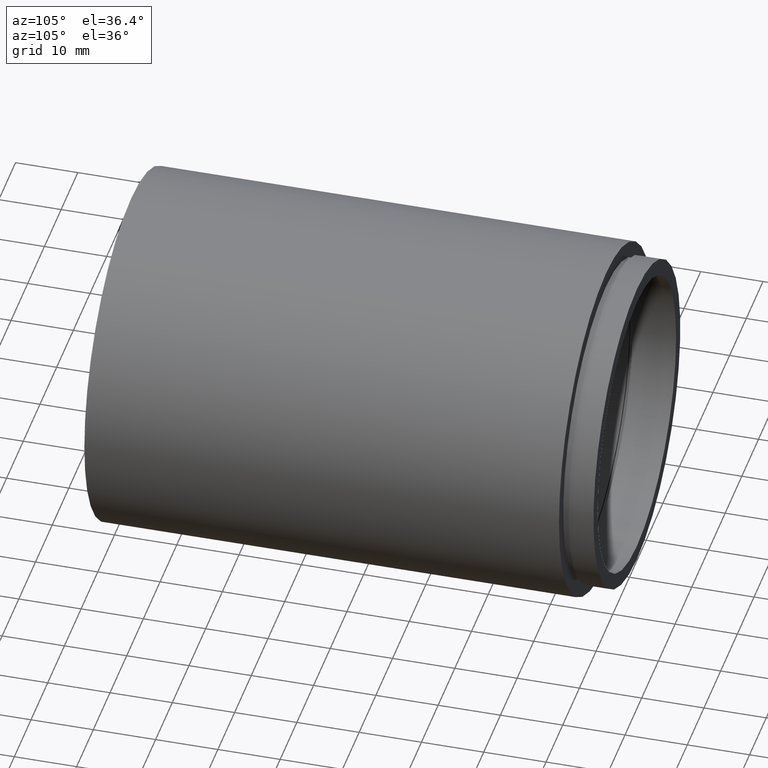
[diagram: clean part render]
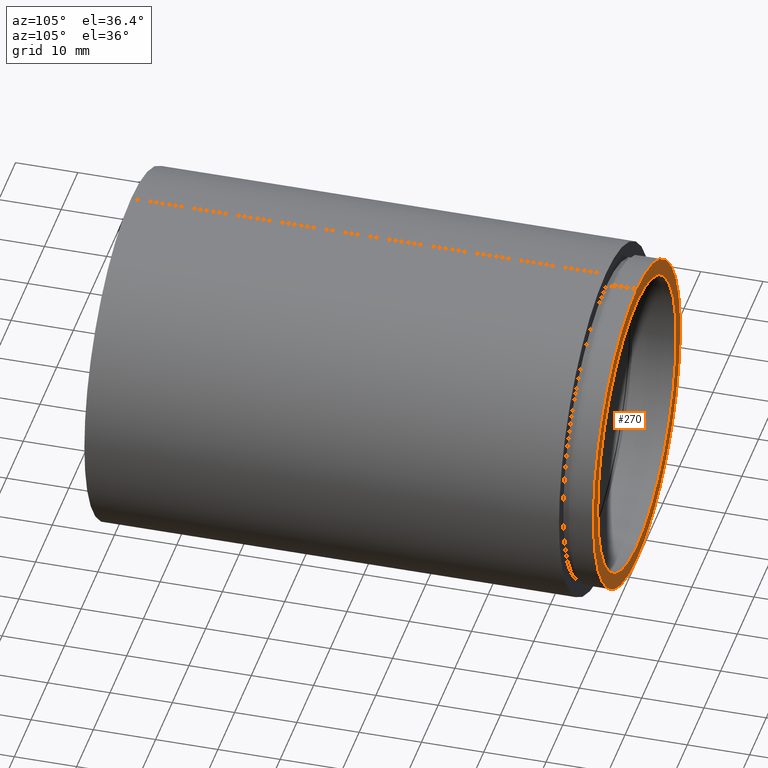
[diagram: same view with one face highlighted and labeled with its STEP entity id]
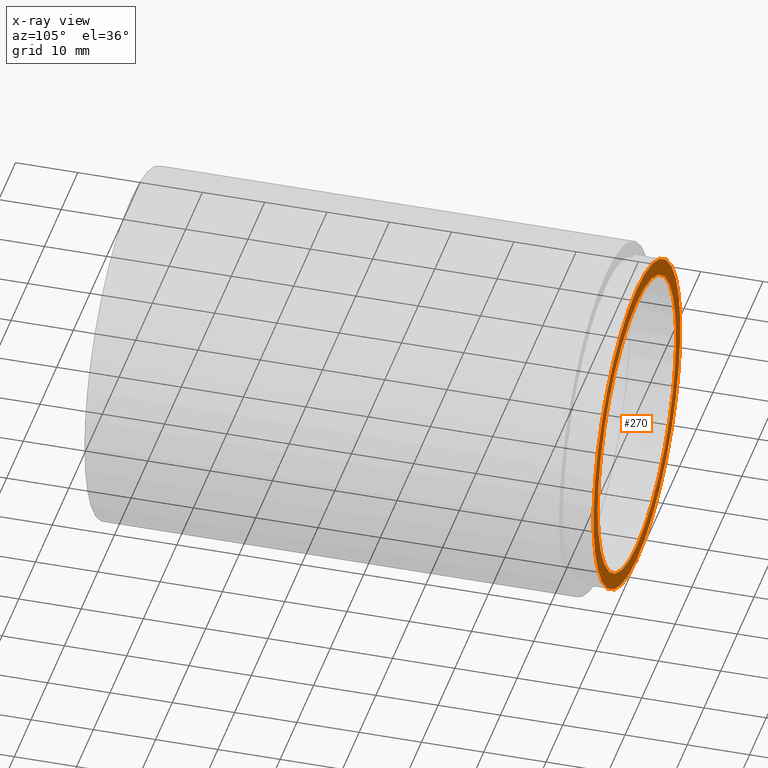
[diagram: x-ray of the same camera — body ghosted, the highlighted face saturated]
A machine part, auxiliary view. The second image highlights one B-rep face of the part: STEP entity #270.
The next image is the same camera in x-ray: the body ghosted, the highlighted face saturated — about 0% of this face is hidden behind the body in this view.
In plain terms, the highlighted planar face has unit normal (0, -1, 0).
Its self-contained STEP definition (entity closure, byte-faithful):
#3 = CIRCLE ( 'NONE', #330, 26.00000000000001100 ) ;
#19 = CIRCLE ( 'NONE', #570, 23.50000000000001400 ) ;
#36 = EDGE_LOOP ( 'NONE', ( #61, #431 ) ) ;
#51 = DIRECTION ( 'NONE',  ( 0.0000000000000000000, 0.0000000000000000000, 1.000000000000000000 ) ) ;
#61 = ORIENTED_EDGE ( 'NONE', *, *, #477, .T. ) ;
#70 = AXIS2_PLACEMENT_3D ( 'NONE', #495, #206, #585 ) ;
#97 = CARTESIAN_POINT ( 'NONE',  ( 3.184081677783119400E-015, 81.19999999999998900, -26.00000000000001100 ) ) ;
#104 = FACE_BOUND ( 'NONE', #492, .T. ) ;
#184 = DIRECTION ( 'NONE',  ( 0.0000000000000000000, -1.000000000000000000, 0.0000000000000000000 ) ) ;
#197 = DIRECTION ( 'NONE',  ( 0.0000000000000000000, 0.0000000000000000000, 1.000000000000000000 ) ) ;
#199 = AXIS2_PLACEMENT_3D ( 'NONE', #302, #408, #297 ) ;
#206 = DIRECTION ( 'NONE',  ( -0.0000000000000000000, 1.000000000000000000, -0.0000000000000000000 ) ) ;
#234 = DIRECTION ( 'NONE',  ( 0.0000000000000000000, -0.0000000000000000000, -1.000000000000000000 ) ) ;
#246 = VERTEX_POINT ( 'NONE', #476 ) ;
#253 = CARTESIAN_POINT ( 'NONE',  ( 0.0000000000000000000, 81.19999999999998900, 0.0000000000000000000 ) ) ;
#264 = VERTEX_POINT ( 'NONE', #474 ) ;
#270 = ADVANCED_FACE ( 'NONE', ( #104, #508 ), #619, .F. ) ;
#297 = DIRECTION ( 'NONE',  ( 0.0000000000000000000, 0.0000000000000000000, 1.000000000000000000 ) ) ;
#299 = DIRECTION ( 'NONE',  ( -0.0000000000000000000, 1.000000000000000000, -0.0000000000000000000 ) ) ;
#300 = CARTESIAN_POINT ( 'NONE',  ( 0.0000000000000000000, 81.19999999999998900, 26.00000000000001100 ) ) ;
#302 = CARTESIAN_POINT ( 'NONE',  ( 0.0000000000000000000, 81.19999999999998900, 0.0000000000000000000 ) ) ;
#304 = EDGE_CURVE ( 'NONE', #246, #264, #19, .T. ) ;
#308 = CIRCLE ( 'NONE', #199, 26.00000000000001100 ) ;
#330 = AXIS2_PLACEMENT_3D ( 'NONE', #253, #299, #197 ) ;
#343 = CARTESIAN_POINT ( 'NONE',  ( 0.0000000000000000000, 81.19999999999998900, 0.0000000000000000000 ) ) ;
#346 = DIRECTION ( 'NONE',  ( -0.0000000000000000000, 1.000000000000000000, -0.0000000000000000000 ) ) ;
#385 = EDGE_CURVE ( 'NONE', #387, #588, #3, .T. ) ;
#387 = VERTEX_POINT ( 'NONE', #97 ) ;
#408 = DIRECTION ( 'NONE',  ( -0.0000000000000000000, 1.000000000000000000, -0.0000000000000000000 ) ) ;
#427 = CARTESIAN_POINT ( 'NONE',  ( 23.50000000000001400, 81.19999999999998900, 0.0000000000000000000 ) ) ;
#428 = EDGE_CURVE ( 'NONE', #264, #246, #540, .T. ) ;
#431 = ORIENTED_EDGE ( 'NONE', *, *, #385, .T. ) ;
#447 = ORIENTED_EDGE ( 'NONE', *, *, #428, .F. ) ;
#474 = CARTESIAN_POINT ( 'NONE',  ( 2.877919977996281900E-015, 81.19999999999998900, -23.50000000000001400 ) ) ;
#476 = CARTESIAN_POINT ( 'NONE',  ( 0.0000000000000000000, 81.19999999999998900, 23.50000000000001400 ) ) ;
#477 = EDGE_CURVE ( 'NONE', #588, #387, #308, .T. ) ;
#492 = EDGE_LOOP ( 'NONE', ( #515, #447 ) ) ;
#495 = CARTESIAN_POINT ( 'NONE',  ( 0.0000000000000000000, 81.19999999999998900, 0.0000000000000000000 ) ) ;
#508 = FACE_OUTER_BOUND ( 'NONE', #36, .T. ) ;
#515 = ORIENTED_EDGE ( 'NONE', *, *, #304, .F. ) ;
#540 = CIRCLE ( 'NONE', #70, 23.50000000000001400 ) ;
#570 = AXIS2_PLACEMENT_3D ( 'NONE', #343, #346, #51 ) ;
#585 = DIRECTION ( 'NONE',  ( 0.0000000000000000000, 0.0000000000000000000, 1.000000000000000000 ) ) ;
#588 = VERTEX_POINT ( 'NONE', #300 ) ;
#598 = AXIS2_PLACEMENT_3D ( 'NONE', #427, #184, #234 ) ;
#619 = PLANE ( 'NONE',  #598 ) ;